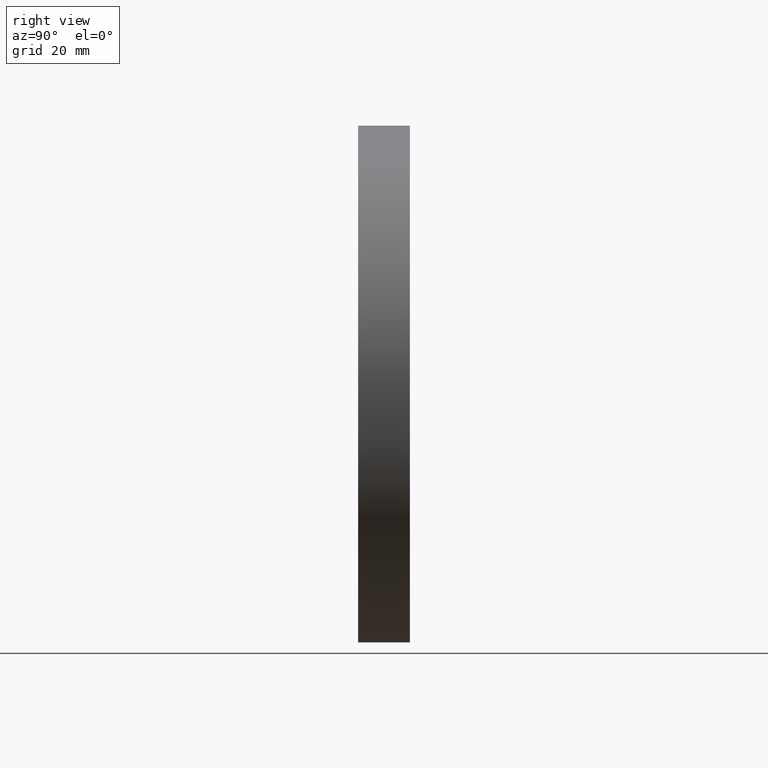
[diagram: clean part render]
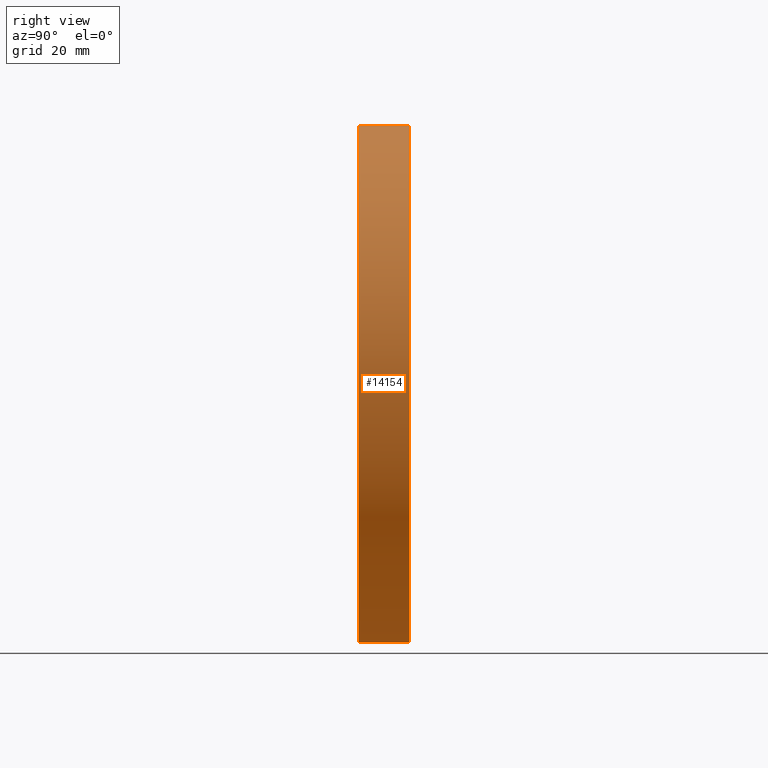
[diagram: same view with one face highlighted and labeled with its STEP entity id]
A machine part, right view. The second image highlights one B-rep face of the part: STEP entity #14154.
In plain terms, the highlighted cylindrical surface (partial cylindrical patch) has radius 50 mm, axis along (-0, -1, -0).
Its self-contained STEP definition (entity closure, byte-faithful):
#1572 = DIRECTION ( 'NONE',  ( -0.000000000000000000, -1.000000000000000000, -0.000000000000000000 ) ) ;
#1653 = CARTESIAN_POINT ( 'NONE',  ( 6.123233995736766085E-15, 10.00000000000000000, 50.00000000000000000 ) ) ;
#1836 = DIRECTION ( 'NONE',  ( -0.000000000000000000, -1.000000000000000000, -0.000000000000000000 ) ) ;
#2693 = AXIS2_PLACEMENT_3D ( 'NONE', #7860, #14998, #4395 ) ;
#2901 = CARTESIAN_POINT ( 'NONE',  ( 6.123233995736766085E-15, 10.00000000000000000, 50.00000000000000000 ) ) ;
#2902 = DIRECTION ( 'NONE',  ( 0.000000000000000000, 0.000000000000000000, -1.000000000000000000 ) ) ;
#3449 = LINE ( 'NONE', #5072, #7423 ) ;
#3655 = VERTEX_POINT ( 'NONE', #2901 ) ;
#3701 = ORIENTED_EDGE ( 'NONE', *, *, #9369, .T. ) ;
#3750 = CARTESIAN_POINT ( 'NONE',  ( 0.000000000000000000, 0.000000000000000000, -50.00000000000000000 ) ) ;
#3817 = VECTOR ( 'NONE', #1836, 1000.000000000000000 ) ;
#4333 = ORIENTED_EDGE ( 'NONE', *, *, #4905, .F. ) ;
#4363 = CARTESIAN_POINT ( 'NONE',  ( 6.123233995736766085E-15, 0.000000000000000000, 50.00000000000000000 ) ) ;
#4395 = DIRECTION ( 'NONE',  ( 0.000000000000000000, 0.000000000000000000, 1.000000000000000000 ) ) ;
#4858 = VERTEX_POINT ( 'NONE', #4363 ) ;
#4905 = EDGE_CURVE ( 'NONE', #3655, #7893, #11845, .T. ) ;
#5072 = CARTESIAN_POINT ( 'NONE',  ( 0.000000000000000000, 10.00000000000000000, -50.00000000000000000 ) ) ;
#5850 = DIRECTION ( 'NONE',  ( 0.000000000000000000, 1.000000000000000000, 0.000000000000000000 ) ) ;
#6352 = VERTEX_POINT ( 'NONE', #3750 ) ;
#7423 = VECTOR ( 'NONE', #1572, 1000.000000000000000 ) ;
#7732 = AXIS2_PLACEMENT_3D ( 'NONE', #11003, #9972, #2902 ) ;
#7738 = AXIS2_PLACEMENT_3D ( 'NONE', #10477, #5850, #14004 ) ;
#7844 = CIRCLE ( 'NONE', #2693, 50.00000000000000000 ) ;
#7858 = ORIENTED_EDGE ( 'NONE', *, *, #12873, .T. ) ;
#7860 = CARTESIAN_POINT ( 'NONE',  ( 0.000000000000000000, 0.000000000000000000, 0.000000000000000000 ) ) ;
#7893 = VERTEX_POINT ( 'NONE', #14919 ) ;
#8169 = EDGE_CURVE ( 'NONE', #7893, #6352, #3449, .T. ) ;
#8557 = FACE_OUTER_BOUND ( 'NONE', #13828, .T. ) ;
#9083 = CYLINDRICAL_SURFACE ( 'NONE', #7732, 50.00000000000000000 ) ;
#9369 = EDGE_CURVE ( 'NONE', #3655, #4858, #13826, .T. ) ;
#9972 = DIRECTION ( 'NONE',  ( -0.000000000000000000, -1.000000000000000000, -0.000000000000000000 ) ) ;
#10477 = CARTESIAN_POINT ( 'NONE',  ( 0.000000000000000000, 10.00000000000000000, 0.000000000000000000 ) ) ;
#11003 = CARTESIAN_POINT ( 'NONE',  ( 0.000000000000000000, 10.00000000000000000, 0.000000000000000000 ) ) ;
#11747 = ORIENTED_EDGE ( 'NONE', *, *, #8169, .F. ) ;
#11845 = CIRCLE ( 'NONE', #7738, 50.00000000000000000 ) ;
#12873 = EDGE_CURVE ( 'NONE', #4858, #6352, #7844, .T. ) ;
#13826 = LINE ( 'NONE', #1653, #3817 ) ;
#13828 = EDGE_LOOP ( 'NONE', ( #4333, #3701, #7858, #11747 ) ) ;
#14004 = DIRECTION ( 'NONE',  ( 0.000000000000000000, 0.000000000000000000, 1.000000000000000000 ) ) ;
#14154 = ADVANCED_FACE ( 'NONE', ( #8557 ), #9083, .T. ) ;
#14919 = CARTESIAN_POINT ( 'NONE',  ( 0.000000000000000000, 10.00000000000000000, -50.00000000000000000 ) ) ;
#14998 = DIRECTION ( 'NONE',  ( 0.000000000000000000, 1.000000000000000000, 0.000000000000000000 ) ) ;